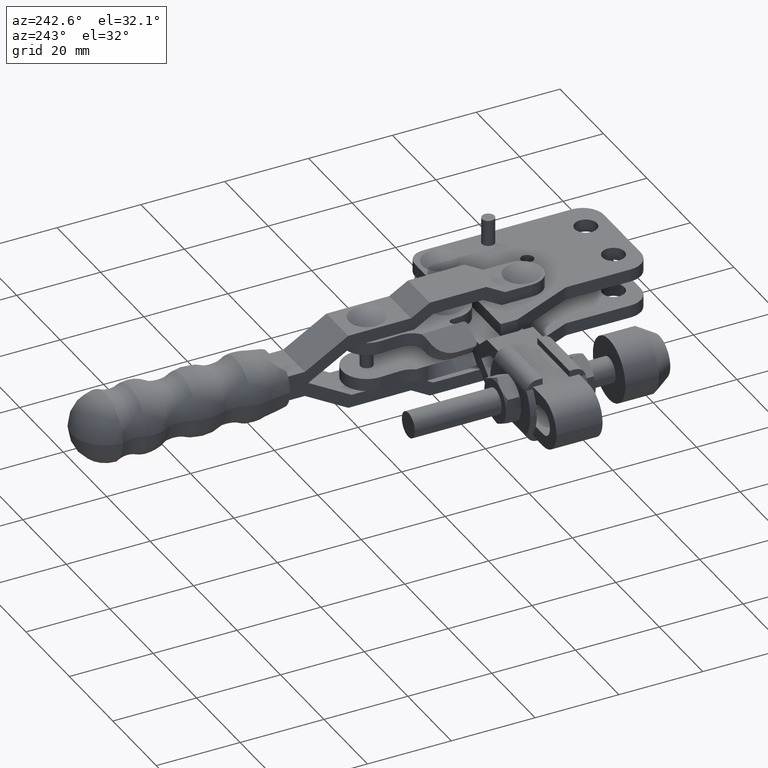
[diagram: clean part render]
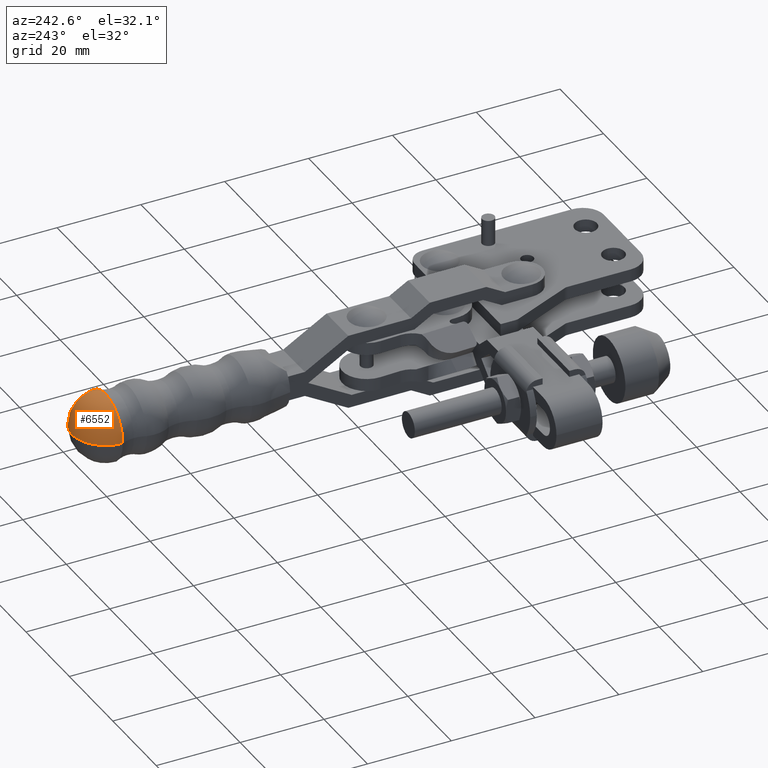
[diagram: same view with one face highlighted and labeled with its STEP entity id]
A machine part, auxiliary view. The second image highlights one B-rep face of the part: STEP entity #6552.
In plain terms, the highlighted spherical surface has radius 8 mm.
Its self-contained STEP definition (entity closure, byte-faithful):
#149 = EDGE_LOOP ( 'NONE', ( #5968, #2662, #10547 ) ) ;
#806 = CIRCLE ( 'NONE', #7301, 8.000000000000007100 ) ;
#988 = CIRCLE ( 'NONE', #6707, 8.000000000000024900 ) ;
#1142 = EDGE_CURVE ( 'NONE', #10470, #1277, #988, .T. ) ;
#1277 = VERTEX_POINT ( 'NONE', #7081 ) ;
#1606 = CARTESIAN_POINT ( 'NONE',  ( 24.68546974982568900, 117.9050279937914200, -25.68006977252606800 ) ) ;
#1831 = AXIS2_PLACEMENT_3D ( 'NONE', #7980, #3520, #9680 ) ;
#2463 = EDGE_CURVE ( 'NONE', #7333, #1277, #806, .T. ) ;
#2662 = ORIENTED_EDGE ( 'NONE', *, *, #2463, .T. ) ;
#3520 = DIRECTION ( 'NONE',  ( 1.765690344522603200E-021, -3.943233274035996800E-020, -1.000000000000000000 ) ) ;
#3660 = FACE_OUTER_BOUND ( 'NONE', #149, .T. ) ;
#3751 = AXIS2_PLACEMENT_3D ( 'NONE', #4011, #11158, #5449 ) ;
#3996 = CARTESIAN_POINT ( 'NONE',  ( 24.64562829861545600, 125.9049287843491100, -25.68006977252606800 ) ) ;
#4011 = CARTESIAN_POINT ( 'NONE',  ( 24.68546974982568900, 117.9050279937914200, -25.68006977252606800 ) ) ;
#4330 = DIRECTION ( 'NONE',  ( 1.224613955178161100E-016, 6.493286539653670500E-019, 1.000000000000000000 ) ) ;
#4348 = DIRECTION ( 'NONE',  ( 0.004980181401279459500, -0.9999875988197106700, 3.944063719110663000E-020 ) ) ;
#4534 = CARTESIAN_POINT ( 'NONE',  ( 32.68537054038341000, 117.9448694450016400, -25.68006977252606800 ) ) ;
#4810 = CARTESIAN_POINT ( 'NONE',  ( 24.68546974982570000, 117.9050279937914100, -25.68006977252606800 ) ) ;
#5449 = DIRECTION ( 'NONE',  ( 0.9999875988197105500, 0.004980181401279324200, 0.0000000000000000000 ) ) ;
#5968 = ORIENTED_EDGE ( 'NONE', *, *, #6234, .F. ) ;
#6234 = EDGE_CURVE ( 'NONE', #7333, #10470, #10920, .T. ) ;
#6552 = ADVANCED_FACE ( 'NONE', ( #3660 ), #9803, .T. ) ;
#6707 = AXIS2_PLACEMENT_3D ( 'NONE', #4810, #4348, #10091 ) ;
#7081 = CARTESIAN_POINT ( 'NONE',  ( 16.68556895926799300, 117.8651865425811600, -25.68006977252607100 ) ) ;
#7301 = AXIS2_PLACEMENT_3D ( 'NONE', #1606, #4330, #10035 ) ;
#7333 = VERTEX_POINT ( 'NONE', #3996 ) ;
#7980 = CARTESIAN_POINT ( 'NONE',  ( 24.68546974982568900, 117.9050279937914200, -25.68006977252606800 ) ) ;
#9680 = DIRECTION ( 'NONE',  ( 0.0000000000000000000, 1.000000000000000000, 0.0000000000000000000 ) ) ;
#9803 = SPHERICAL_SURFACE ( 'NONE', #3751, 8.000000000000007100 ) ;
#10035 = DIRECTION ( 'NONE',  ( 1.000000000000000000, 0.0000000000000000000, 0.0000000000000000000 ) ) ;
#10091 = DIRECTION ( 'NONE',  ( 0.9999875988197106700, 0.004980181401279313800, 0.0000000000000000000 ) ) ;
#10470 = VERTEX_POINT ( 'NONE', #4534 ) ;
#10547 = ORIENTED_EDGE ( 'NONE', *, *, #1142, .F. ) ;
#10920 = CIRCLE ( 'NONE', #1831, 8.000000000000021300 ) ;
#11158 = DIRECTION ( 'NONE',  ( -1.964215277937548000E-022, 3.944014808065408100E-020, 1.000000000000000000 ) ) ;